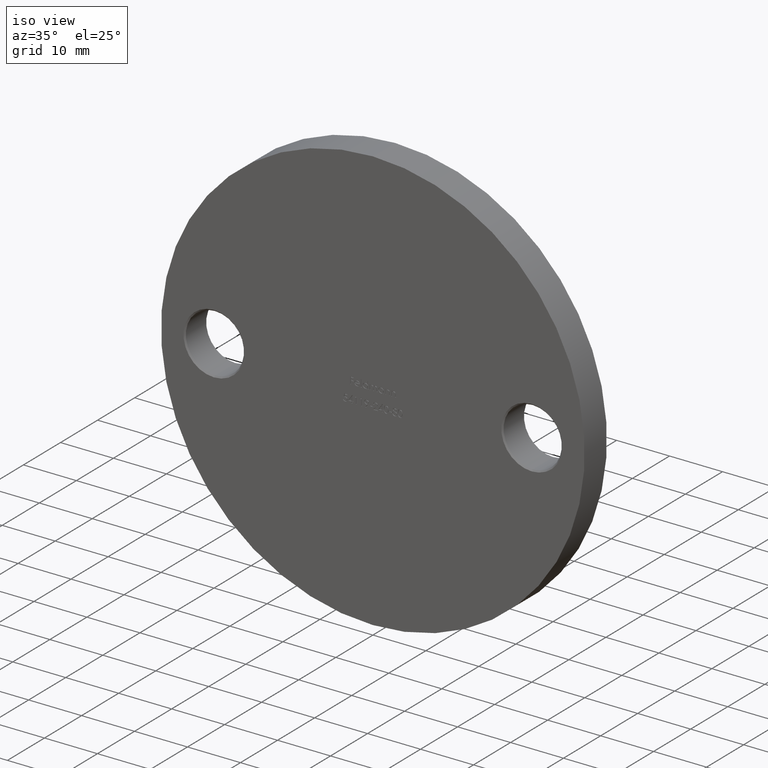
[diagram: clean part render]
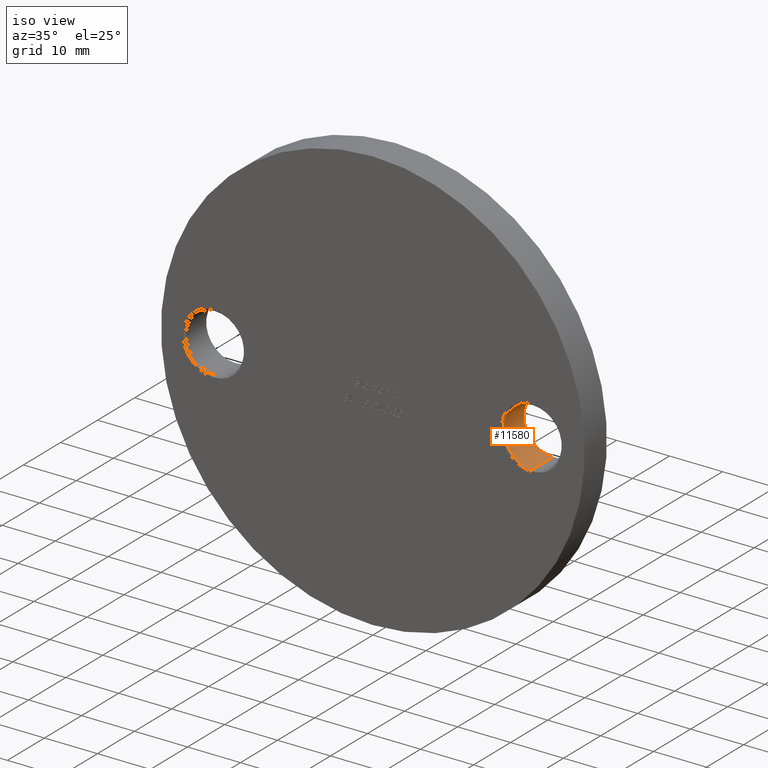
[diagram: same view with one face highlighted and labeled with its STEP entity id]
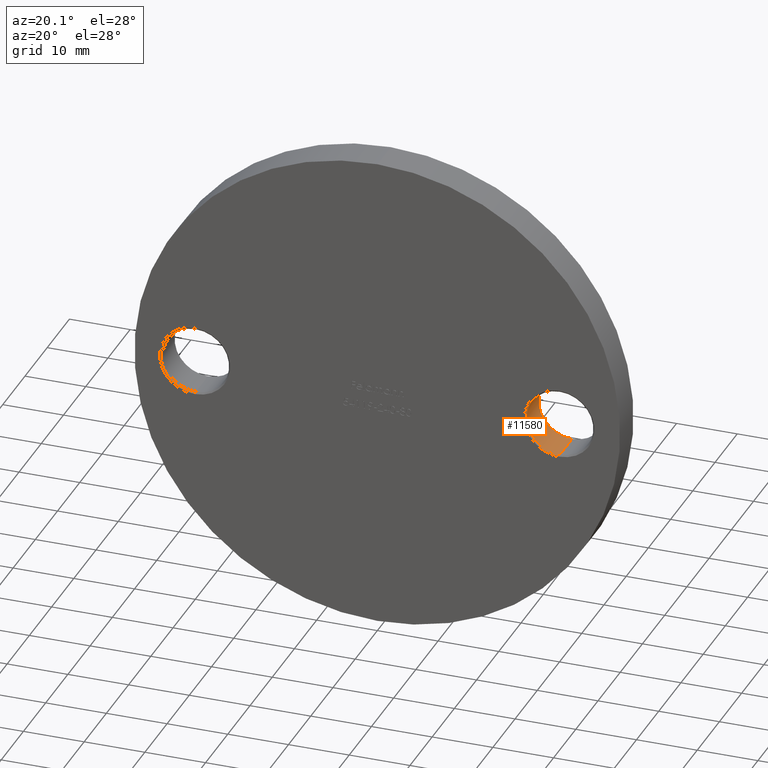
[diagram: same view with one face highlighted and labeled with its STEP entity id]
A machine part, iso view. The second image highlights one B-rep face of the part: STEP entity #11580.
A second angle (auxiliary view) of the same face is appended — the face is thin or edge-on in the first view.
In plain terms, the highlighted cylindrical surface (edge-blend (fillet) strip) has radius 5.5 mm, axis along (-0, -1, -0).
Its self-contained STEP definition (entity closure, byte-faithful):
#181 = AXIS2_PLACEMENT_3D ( 'NONE', #443, #3736, #6890 ) ;
#353 = VERTEX_POINT ( 'NONE', #8498 ) ;
#443 = CARTESIAN_POINT ( 'NONE',  ( 30.00000000000000000, 5.750000000000000000, -7.347880794884118356E-15 ) ) ;
#496 = EDGE_CURVE ( 'NONE', #11264, #11055, #3370, .T. ) ;
#994 = CARTESIAN_POINT ( 'NONE',  ( 30.00000000000000000, 5.750000000000000000, 5.499999999999989342 ) ) ;
#1387 = CARTESIAN_POINT ( 'NONE',  ( 30.00000000000000000, 6.000000000000000000, -7.347880794884118356E-15 ) ) ;
#1721 = VECTOR ( 'NONE', #5926, 1000.000000000000000 ) ;
#2541 = EDGE_CURVE ( 'NONE', #11264, #4739, #7708, .T. ) ;
#2552 = CARTESIAN_POINT ( 'NONE',  ( 30.00000000000000000, 6.000000000000000000, -5.500000000000003553 ) ) ;
#2616 = CYLINDRICAL_SURFACE ( 'NONE', #2640, 5.499999999999996447 ) ;
#2640 = AXIS2_PLACEMENT_3D ( 'NONE', #1387, #11627, #5280 ) ;
#2968 = CARTESIAN_POINT ( 'NONE',  ( 30.00000000000000000, 0.2500000000000036637, -7.347880794884118356E-15 ) ) ;
#3346 = CARTESIAN_POINT ( 'NONE',  ( 30.00000000000000000, 0.2500000000000036637, -5.500000000000003553 ) ) ;
#3370 = CIRCLE ( 'NONE', #181, 5.499999999999996447 ) ;
#3421 = LINE ( 'NONE', #4569, #8914 ) ;
#3736 = DIRECTION ( 'NONE',  ( 0.000000000000000000, 1.000000000000000000, 0.000000000000000000 ) ) ;
#4569 = CARTESIAN_POINT ( 'NONE',  ( 30.00000000000000000, 6.000000000000000000, 5.499999999999989342 ) ) ;
#4625 = EDGE_CURVE ( 'NONE', #11055, #353, #3421, .T. ) ;
#4739 = VERTEX_POINT ( 'NONE', #3346 ) ;
#4792 = AXIS2_PLACEMENT_3D ( 'NONE', #2968, #12830, #8256 ) ;
#5090 = EDGE_LOOP ( 'NONE', ( #5732, #6941, #9776, #5099 ) ) ;
#5099 = ORIENTED_EDGE ( 'NONE', *, *, #2541, .F. ) ;
#5280 = DIRECTION ( 'NONE',  ( 0.000000000000000000, 0.000000000000000000, -1.000000000000000000 ) ) ;
#5732 = ORIENTED_EDGE ( 'NONE', *, *, #496, .T. ) ;
#5926 = DIRECTION ( 'NONE',  ( -0.000000000000000000, -1.000000000000000000, -0.000000000000000000 ) ) ;
#6890 = DIRECTION ( 'NONE',  ( 0.000000000000000000, 0.000000000000000000, 1.000000000000000000 ) ) ;
#6941 = ORIENTED_EDGE ( 'NONE', *, *, #4625, .T. ) ;
#7708 = LINE ( 'NONE', #2552, #1721 ) ;
#8256 = DIRECTION ( 'NONE',  ( 0.000000000000000000, 0.000000000000000000, 1.000000000000000000 ) ) ;
#8498 = CARTESIAN_POINT ( 'NONE',  ( 30.00000000000000000, 0.2500000000000036637, 5.499999999999989342 ) ) ;
#8795 = FACE_OUTER_BOUND ( 'NONE', #5090, .T. ) ;
#8914 = VECTOR ( 'NONE', #9044, 1000.000000000000000 ) ;
#8933 = CIRCLE ( 'NONE', #4792, 5.499999999999996447 ) ;
#9044 = DIRECTION ( 'NONE',  ( -0.000000000000000000, -1.000000000000000000, -0.000000000000000000 ) ) ;
#9776 = ORIENTED_EDGE ( 'NONE', *, *, #13547, .T. ) ;
#11055 = VERTEX_POINT ( 'NONE', #994 ) ;
#11264 = VERTEX_POINT ( 'NONE', #12124 ) ;
#11580 = ADVANCED_FACE ( 'NONE', ( #8795 ), #2616, .F. ) ;
#11627 = DIRECTION ( 'NONE',  ( -0.000000000000000000, -1.000000000000000000, -0.000000000000000000 ) ) ;
#12124 = CARTESIAN_POINT ( 'NONE',  ( 30.00000000000000000, 5.750000000000000000, -5.500000000000003553 ) ) ;
#12830 = DIRECTION ( 'NONE',  ( -0.000000000000000000, -1.000000000000000000, -0.000000000000000000 ) ) ;
#13547 = EDGE_CURVE ( 'NONE', #353, #4739, #8933, .T. ) ;